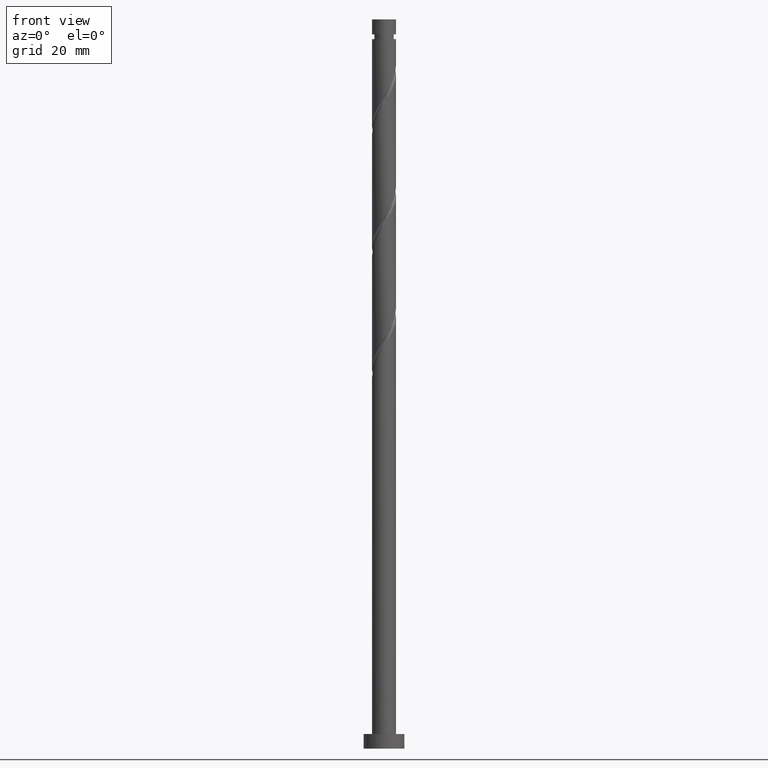
[diagram: clean part render]
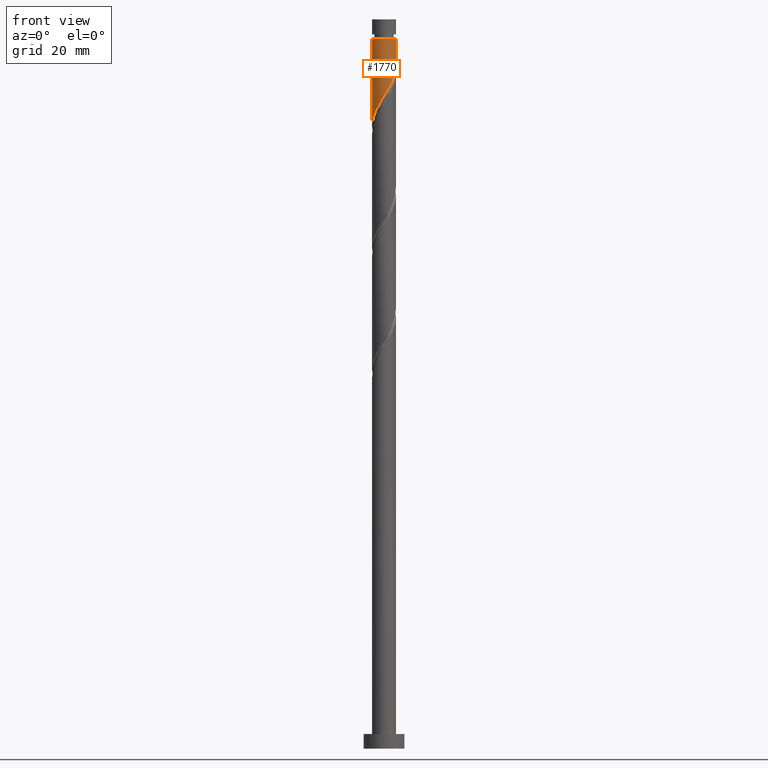
[diagram: same view with one face highlighted and labeled with its STEP entity id]
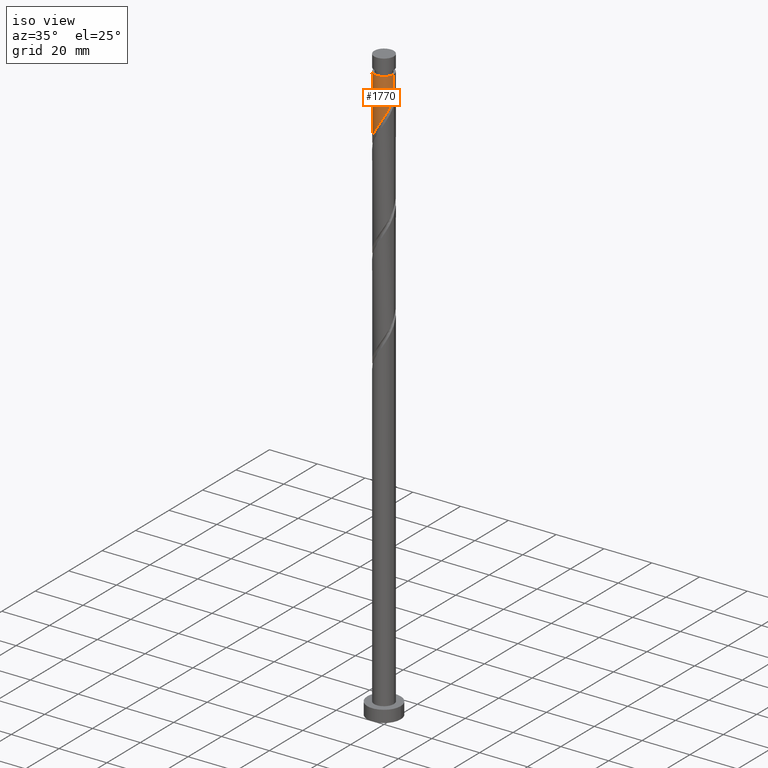
[diagram: same view with one face highlighted and labeled with its STEP entity id]
A machine part, front view. The second image highlights one B-rep face of the part: STEP entity #1770.
A second angle (iso view) of the same face is appended — the face is thin or edge-on in the first view.
In plain terms, the highlighted cylindrical surface (edge-blend (fillet) strip) has radius 4.1 mm, axis along (-0, -0, -1).
Its self-contained STEP definition (entity closure, byte-faithful):
#26 = VERTEX_POINT ( 'NONE', #208 ) ;
#37 = LINE ( 'NONE', #1736, #1356 ) ;
#52 = FACE_OUTER_BOUND ( 'NONE', #987, .T. ) ;
#115 = ORIENTED_EDGE ( 'NONE', *, *, #1005, .F. ) ;
#126 = CARTESIAN_POINT ( 'NONE',  ( -3.770227348058447170, -1.611020094211167875, 216.0034319567436683 ) ) ;
#135 = CARTESIAN_POINT ( 'NONE',  ( -4.099999999999998757, -5.653344765582381697E-15, 213.3249435762252517 ) ) ;
#184 = CYLINDRICAL_SURFACE ( 'NONE', #1220, 4.099999999999999645 ) ;
#208 = CARTESIAN_POINT ( 'NONE',  ( -4.099999999999998757, -5.653344765582381697E-15, 213.3249435762252801 ) ) ;
#249 = EDGE_CURVE ( 'NONE', #986, #865, #1632, .T. ) ;
#256 = CARTESIAN_POINT ( 'NONE',  ( -0.3280161698403883941, -4.117066945273671230, 223.2149704182821779 ) ) ;
#263 = CARTESIAN_POINT ( 'NONE',  ( 4.047510911646313936, -0.8218821446204198633, 232.8303550336667911 ) ) ;
#278 = CARTESIAN_POINT ( 'NONE',  ( 3.890359620423019749, -1.294257325179984930, 232.0290729823846902 ) ) ;
#347 = DIRECTION ( 'NONE',  ( -0.000000000000000000, -0.000000000000000000, -1.000000000000000000 ) ) ;
#408 = CARTESIAN_POINT ( 'NONE',  ( -4.046213737460023552, -0.6619323158675554097, 214.4008678541794950 ) ) ;
#415 = CARTESIAN_POINT ( 'NONE',  ( 0.6667939948345544821, -4.075931869891155301, 224.8175345208462943 ) ) ;
#451 = DIRECTION ( 'NONE',  ( -0.000000000000000000, -0.000000000000000000, -1.000000000000000000 ) ) ;
#483 = VERTEX_POINT ( 'NONE', #684 ) ;
#509 = CARTESIAN_POINT ( 'NONE',  ( -4.099999999999999645, 0.000000000000000000, 250.0000000000000000 ) ) ;
#521 = CARTESIAN_POINT ( 'NONE',  ( -2.203740304420987339, -3.493045019780353311, 220.0098422131539451 ) ) ;
#524 = VECTOR ( 'NONE', #1637, 1000.000000000000000 ) ;
#530 = CARTESIAN_POINT ( 'NONE',  ( 3.201945248320207327, -2.608712607072974698, 229.6252268285385867 ) ) ;
#545 = CARTESIAN_POINT ( 'NONE',  ( 2.053724632216503476, -3.548551131803962200, 227.2213806746923694 ) ) ;
#549 = ORIENTED_EDGE ( 'NONE', *, *, #249, .T. ) ;
#590 = DIRECTION ( 'NONE',  ( -1.000000000000000000, 0.000000000000000000, 0.000000000000000000 ) ) ;
#623 = DIRECTION ( 'NONE',  ( -1.000000000000000000, 0.000000000000000000, 0.000000000000000000 ) ) ;
#661 = DIRECTION ( 'NONE',  ( -0.000000000000000000, -0.000000000000000000, -1.000000000000000000 ) ) ;
#678 = CARTESIAN_POINT ( 'NONE',  ( -3.574614093208416055, -2.068808576011227363, 216.8047140080257407 ) ) ;
#684 = CARTESIAN_POINT ( 'NONE',  ( 4.099999999999998757, -1.719932931327973171E-15, 234.1582769095586229 ) ) ;
#827 = CARTESIAN_POINT ( 'NONE',  ( -1.303763227014474779, -3.918933054726328802, 221.6124063157180331 ) ) ;
#846 = CARTESIAN_POINT ( 'NONE',  ( -0.8158896984274305320, -4.017999999999998906, 222.4136883670000486 ) ) ;
#865 = VERTEX_POINT ( 'NONE', #1683 ) ;
#873 = EDGE_CURVE ( 'NONE', #483, #26, #1826, .T. ) ;
#974 = CARTESIAN_POINT ( 'NONE',  ( 2.843270998262973581, -2.953948210520399797, 228.8239447772564858 ) ) ;
#982 = CARTESIAN_POINT ( 'NONE',  ( 4.099999999999998757, -1.719932931327973171E-15, 234.1582769095586229 ) ) ;
#986 = VERTEX_POINT ( 'NONE', #1173 ) ;
#987 = EDGE_LOOP ( 'NONE', ( #115, #549, #1557, #996 ) ) ;
#989 = CARTESIAN_POINT ( 'NONE',  ( -4.100000000000001421, -0.3331513980018778187, 213.8646443135735637 ) ) ;
#996 = ORIENTED_EDGE ( 'NONE', *, *, #873, .F. ) ;
#999 = CARTESIAN_POINT ( 'NONE',  ( -2.975644005604635378, -2.864153904986782795, 218.4072781105898855 ) ) ;
#1005 = EDGE_CURVE ( 'NONE', #986, #483, #37, .T. ) ;
#1078 = CARTESIAN_POINT ( 'NONE',  ( 0.000000000000000000, 0.000000000000000000, 243.2470217003333914 ) ) ;
#1111 = CARTESIAN_POINT ( 'NONE',  ( 2.484596748205738059, -3.299183813967828005, 228.0226627259744419 ) ) ;
#1128 = CARTESIAN_POINT ( 'NONE',  ( 0.1693889124970829885, -4.096499407582411045, 224.0162524695641650 ) ) ;
#1155 = EDGE_CURVE ( 'NONE', #865, #26, #1489, .T. ) ;
#1173 = CARTESIAN_POINT ( 'NONE',  ( 4.099999999999981881, 5.021051876504136538E-16, 243.2470217003333914 ) ) ;
#1220 = AXIS2_PLACEMENT_3D ( 'NONE', #1449, #347, #590 ) ;
#1278 = CARTESIAN_POINT ( 'NONE',  ( 1.144823255530912576, -3.936925159765625182, 225.6188165721281962 ) ) ;
#1356 = VECTOR ( 'NONE', #451, 1000.000000000000000 ) ;
#1388 = CARTESIAN_POINT ( 'NONE',  ( -1.753751765717731059, -3.705989037253339280, 220.8111242644359322 ) ) ;
#1398 = CARTESIAN_POINT ( 'NONE',  ( 4.099999999999999645, -0.1630698343807495954, 233.8941059939256490 ) ) ;
#1406 = CARTESIAN_POINT ( 'NONE',  ( -2.589692155012810471, -3.178599462383566721, 219.2085601618718442 ) ) ;
#1449 = CARTESIAN_POINT ( 'NONE',  ( 0.000000000000000000, 0.000000000000000000, 250.0000000000000000 ) ) ;
#1489 = LINE ( 'NONE', #509, #524 ) ;
#1536 = CARTESIAN_POINT ( 'NONE',  ( 1.622852516227270225, -3.797918449640097727, 226.4200986234103539 ) ) ;
#1557 = ORIENTED_EDGE ( 'NONE', *, *, #1155, .T. ) ;
#1632 = CIRCLE ( 'NONE', #1832, 4.099999999999981881 ) ;
#1637 = DIRECTION ( 'NONE',  ( -0.000000000000000000, -0.000000000000000000, -1.000000000000000000 ) ) ;
#1669 = CARTESIAN_POINT ( 'NONE',  ( 3.733208329199730002, -1.766632505739546888, 231.2277909311027031 ) ) ;
#1683 = CARTESIAN_POINT ( 'NONE',  ( -4.099999999999981881, 0.000000000000000000, 243.2470217003333914 ) ) ;
#1692 = CARTESIAN_POINT ( 'NONE',  ( -3.275129049406524828, -2.466481240499003746, 217.6059960593077278 ) ) ;
#1736 = CARTESIAN_POINT ( 'NONE',  ( 4.099999999999999645, 5.021051876504147385E-16, 250.0000000000000000 ) ) ;
#1770 = ADVANCED_FACE ( 'NONE', ( #52 ), #184, .T. ) ;
#1809 = CARTESIAN_POINT ( 'NONE',  ( 3.467576788759967776, -2.187672556406260682, 230.4265088798205170 ) ) ;
#1825 = CARTESIAN_POINT ( 'NONE',  ( 4.087048891828938046, -0.3256245626482099920, 233.6316370849487498 ) ) ;
#1826 =( BOUNDED_CURVE ( )  B_SPLINE_CURVE ( 2, ( #982, #1398, #1825, #263, #278, #1669, #1809, #530, #974, #1111, #545, #1536, #1278, #415, #1128, #256, #846, #827, #1388, #521, #1406, #999, #1692, #678, #126, #1835, #408, #989, #135 ),
 .UNSPECIFIED., .F., .T. ) 
 B_SPLINE_CURVE_WITH_KNOTS ( ( 3, 2, 2, 2, 2, 2, 2, 2, 2, 2, 2, 2, 2, 2, 3 ),
 ( 0.3045271625973832164, 0.3076923076923077094, 0.3173076923076922906, 0.3269230769230769273, 0.3365384615384615641, 0.3461538461538461453, 0.3557692307692307820, 0.3653846153846153633, 0.3750000000000000000, 0.3846153846153846367, 0.3942307692307692180, 0.4038461538461538547, 0.4134615384615384359, 0.4230769230769230727, 0.4295271625973834384 ),
 .UNSPECIFIED. ) 
 CURVE ( )  GEOMETRIC_REPRESENTATION_ITEM ( )  RATIONAL_B_SPLINE_CURVE ( ( 0.9061636035682805179, 0.9069090390690691672, 0.9090909090909258250, 0.9024626128164292549, 0.9090909090909258250, 0.9024626128164292549, 0.9090909090909258250, 0.9024626128164292549, 0.9090909090909258250, 0.9024626128164292549, 0.9090909090909258250, 0.9024626128164292549, 0.9090909090909258250, 0.9024626128164292549, 0.9090909090909258250, 0.9024626128164292549, 0.9090909090909258250, 0.9024626128164292549, 0.9090909090909258250, 0.9024626128164292549, 0.9090909090909258250, 0.9024626128164292549, 0.9090909090909258250, 0.9024626128164292549, 0.9090909090909258250, 0.9024626128164292549, 0.9090909090909258250, 0.9046444828382858017, 0.9061636035682805179 ) ) 
 REPRESENTATION_ITEM ( '' )  );
#1832 = AXIS2_PLACEMENT_3D ( 'NONE', #1078, #661, #623 ) ;
#1835 = CARTESIAN_POINT ( 'NONE',  ( -3.965840602908480950, -1.153231612411107054, 215.2021499054616811 ) ) ;